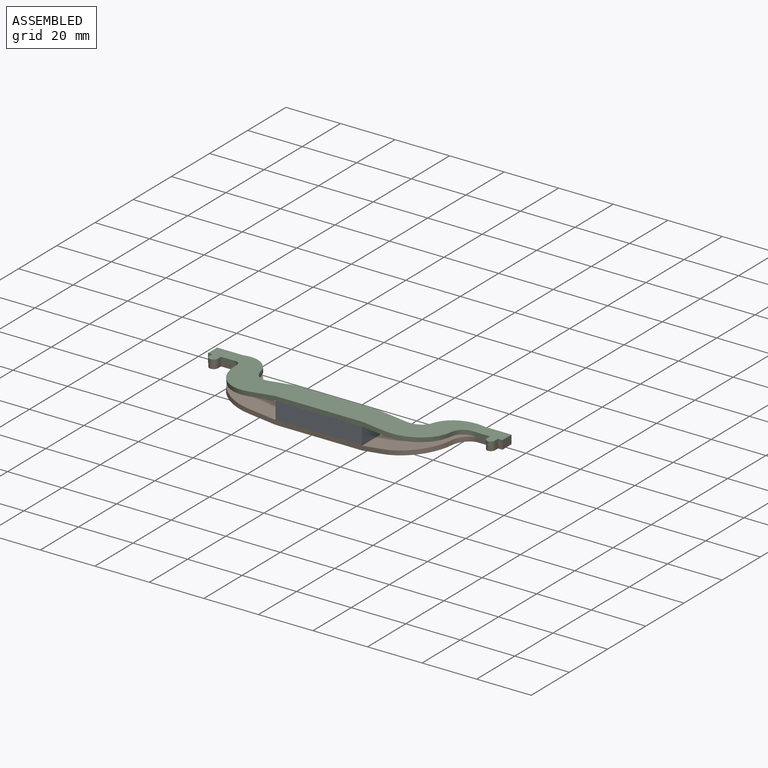
[diagram: assembled view]
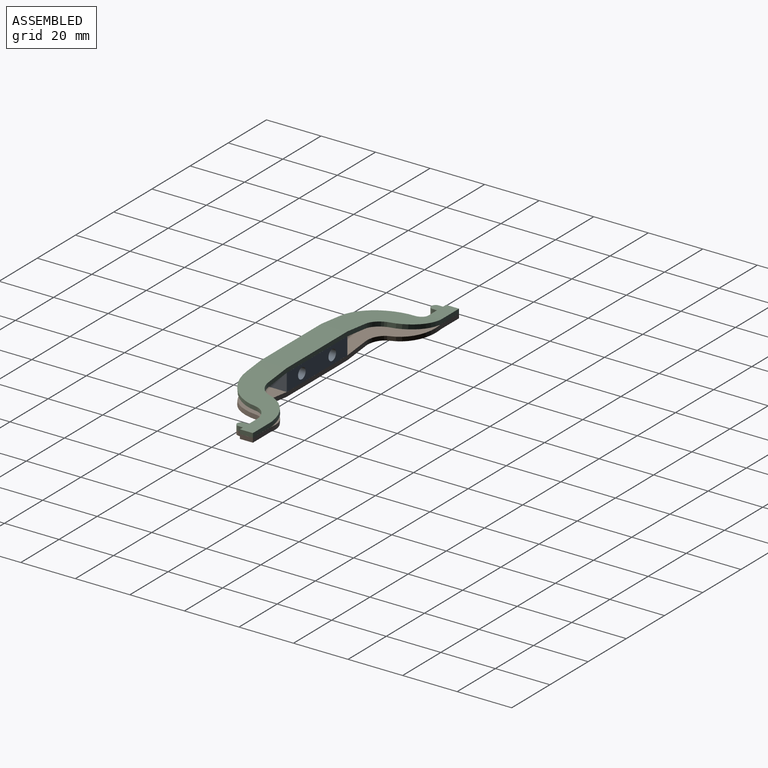
[diagram: assembled view, second angle]
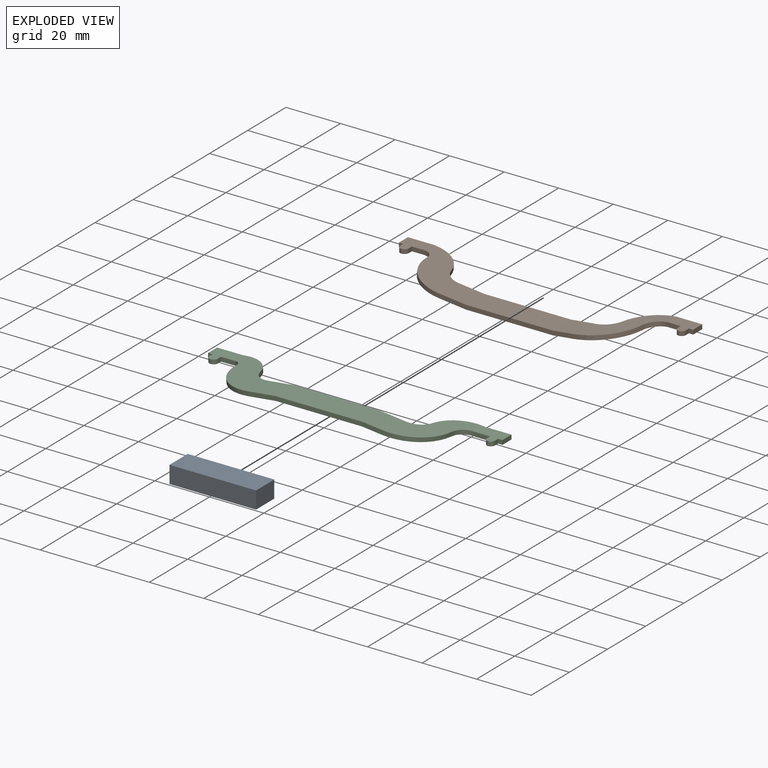
[diagram: exploded view]
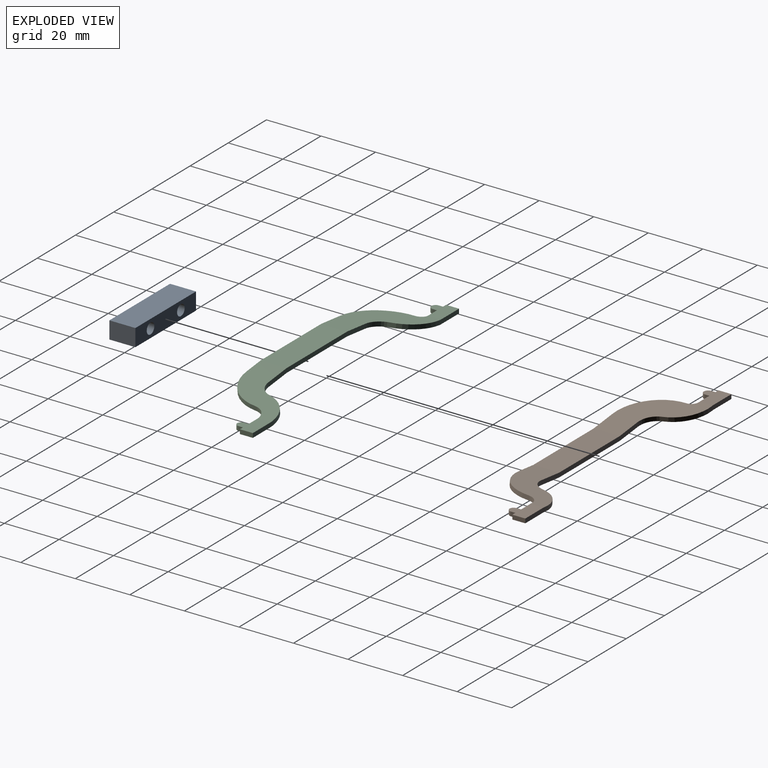
[diagram: exploded view, second angle]
ASSEMBLY  parts=3 mates=2
PART A: 10 faces, bbox 31.8x6.4x9.5 mm
  f0: plane 31.75x6.35mm, normal (0,0,1), area 177mm2, adj f1,f2,f3,f4,f6,f8
  f1: plane 31.75x9.53mm, normal (0,-1,0), area 302.4mm2, adj f0,f2,f4,f5
  f2: plane 9.53x6.35mm, normal (1,0,0), area 60.5mm2, adj f0,f1,f3,f5
  f3: plane 31.75x9.53mm, normal (0,1,0), area 302.4mm2, adj f0,f2,f4,f5
  f4: plane 9.53x6.35mm, normal (-1,0,0), area 60.5mm2, adj f0,f1,f3,f5
  f5: plane 31.75x6.35mm, normal (0,0,-1), area 201.6mm2, adj f1,f2,f3,f4
  f6: cylinder r=1.98mm len=6.35mm, axis (0,0,1), area 79mm2, adj f0,f7
  f7: plane 3.96x3.96mm, normal (0,0,1), area 12.3mm2, adj f6
  f8: cylinder r=1.98mm len=6.35mm, axis (0,0,1), area 79mm2, adj f0,f9
  f9: plane 3.96x3.96mm, normal (0,0,1), area 12.3mm2, adj f8
PART B: 59 faces, bbox 108x23.8x4.8 mm
  f0: plane 31.49x1.59mm, normal (0,-1,0), area 50mm2, adj f2,f3,f26,f55
  f1: plane 31.49x1.59mm, normal (0,1,0), area 50mm2, adj f2,f3,f27,f56
  f2: plane 31.49x9.53mm, normal (0,0,1), area 299.9mm2, adj f0,f1,f29,f58
  f3: plane 31.49x9.53mm, normal (0,0,-1), area 299.9mm2, adj f0,f1,f28,f57
  f4: plane 28.4x23.8mm, normal (-0.11,0,-0.99), area 328.8mm2, adj f6,f7,f8,f9,f10,f11,f12,f25
  f5: plane 28.4x23.8mm, normal (0.11,0,0.99), area 328.8mm2, adj f6,f7,f8,f9,f10,f11,f12,f24
  f6: plane 9.62x2.63mm, normal (0,1,0), area 15.1mm2, adj f4,f5,f7,f27
  f7: cylinder r=6.35mm len=6.29mm, axis (0.11,0,0.99), area 13.3mm2, adj f4,f5,f6,f8
  f8: cylinder r=12.7mm len=12.39mm, axis (0.11,0,0.99), area 26.6mm2, adj f4,f5,f7,f9
  f9: plane 1.65x0.8mm, normal (0,1,0), area 1mm2, adj f4,f5,f8,f23
  f10: cylinder r=2.77mm len=2.93mm, axis (0.11,0,0.99), area 7mm2, adj f4,f5,f11,f22
  f11: cylinder r=15.88mm len=16.22mm, axis (0.11,0,0.99), area 40.1mm2, adj f4,f5,f10,f12
  f12: plane 10.05x2.68mm, normal (0,-1,0), area 15.8mm2, adj f4,f5,f11,f26
  f13: plane 1.59x1.57mm, normal (-1,0,0), area 2.5mm2, adj f14,f19,f20,f21
  f14: cylinder r=1.59mm len=3.18mm, axis (0,0,1), area 7.9mm2, adj f13,f15,f20,f21
  f15: plane 1.59x1.57mm, normal (1,0,0), area 2.5mm2, adj f14,f16,f20,f21
  f16: plane 4.72x1.59mm, normal (0,-1,0), area 7.5mm2, adj f15,f20,f21,f22
  f17: plane 9.48x1.59mm, normal (0,1,0), area 15.1mm2, adj f18,f20,f21,f23
  f18: plane 4.75x1.59mm, normal (-1,0,0), area 7.5mm2, adj f17,f19,f20,f21
  f19: plane 1.59x1.59mm, normal (0,-1,0), area 2.5mm2, adj f13,f18,f20,f21
  f20: plane 9.48x7.91mm, normal (0,0,1), area 54mm2, adj f13,f14,f15,f16,f17,f18,f19,f24
  f21: plane 9.48x7.91mm, normal (0,0,-1), area 54mm2, adj f13,f14,f15,f16,f17,f18,f19,f25
  f22: plane 1.59x0.26mm, normal (0,-1,0), area 0.3mm2, adj f10,f16,f24,f25
  f23: plane 1.59x0.26mm, normal (0,1,0), area 0.3mm2, adj f9,f17,f24,f25
  f24: cylinder r=2.37mm len=4.75mm, axis (0,-1,0), area 1.2mm2, adj f5,f20,f22,f23
  f25: cylinder r=0.79mm len=4.75mm, axis (0,-1,0), area 0.4mm2, adj f4,f21,f22,f23
  f26: plane 1.59x0.26mm, normal (0,-1,0), area 0.3mm2, adj f0,f12,f28,f29
  f27: plane 1.59x0.26mm, normal (0,1,0), area 0.3mm2, adj f1,f6,f28,f29
  f28: cylinder r=2.37mm len=9.53mm, axis (0,-1,0), area 2.5mm2, adj f3,f4,f26,f27
  f29: cylinder r=0.79mm len=9.53mm, axis (0,-1,0), area 0.8mm2, adj f2,f5,f26,f27
  f30: plane 4.9x1.59mm, normal (0,-1,0), area 7.8mm2, adj f31,f38,f39,f51
  f31: plane 1.59x1.59mm, normal (-1,0,0), area 2.5mm2, adj f30,f32,f38,f39
  f32: extruded ~1.59x1.58mm, area 3.8mm2, adj f31,f33,f38,f39
  f33: cylinder r=1.59mm len=1.59mm, axis (0,0,1), area 3.8mm2, adj f32,f34,f38,f39
  f34: plane 1.59x1.59mm, normal (1,0,0), area 2.5mm2, adj f33,f35,f38,f39
  f35: plane 1.59x1.59mm, normal (0,-1,0), area 2.5mm2, adj f34,f36,f38,f39
  f36: plane 4.75x1.59mm, normal (1,0,0), area 7.5mm2, adj f35,f37,f38,f39
  f37: plane 9.48x1.59mm, normal (0,1,0), area 15.1mm2, adj f36,f38,f39,f52
  f38: plane 9.48x7.92mm, normal (0,0,1), area 53.5mm2, adj f30,f31,f32,f33,f34,f35,f36,f37
  f39: plane 9.48x7.92mm, normal (0,0,-1), area 53.5mm2, adj f30,f31,f32,f33,f34,f35,f36,f37
  f40: plane 1.58x0.18mm, normal (0.99,0,0.11), area 0.1mm2, adj f42,f49,f50,f51
  f41: cylinder r=5.55mm len=5.03mm, axis (-0.11,0,0.99), area 11.9mm2, adj f42,f48,f49,f50
  f42: plane 1.65x0.8mm, normal (0,-1,0), area 1mm2, adj f40,f41,f49,f50
  f43: plane 1.7x0.99mm, normal (0,1,0), area 1.3mm2, adj f44,f49,f50,f52
  f44: cylinder r=12.7mm len=12.39mm, axis (-0.11,0,0.99), area 26.3mm2, adj f43,f45,f49,f50
  f45: cylinder r=6.35mm len=6.29mm, axis (-0.11,0,0.99), area 13.3mm2, adj f44,f46,f49,f50
  f46: plane 9.62x2.63mm, normal (0,1,0), area 15.1mm2, adj f45,f49,f50,f56
  f47: plane 7.42x2.38mm, normal (0,-1,0), area 11.6mm2, adj f48,f49,f50,f55
  f48: cylinder r=15.88mm len=15.86mm, axis (-0.11,0,0.99), area 36.8mm2, adj f41,f47,f49,f50
  f49: plane 28.4x23.8mm, normal (-0.11,0,0.99), area 282.7mm2, adj f40,f41,f42,f43,f44,f45,f46,f47
  f50: plane 28.4x23.8mm, normal (0.11,0,-0.99), area 282.8mm2, adj f40,f41,f42,f43,f44,f45,f46,f47
  f51: plane 1.59x0.26mm, normal (0,-1,0), area 0.3mm2, adj f30,f40,f53,f54
  f52: plane 1.59x0.26mm, normal (0,1,0), area 0.3mm2, adj f37,f43,f53,f54
  f53: cylinder r=2.37mm len=4.75mm, axis (0,-1,0), area 1.2mm2, adj f38,f49,f51,f52
  f54: cylinder r=0.79mm len=4.75mm, axis (0,-1,0), area 0.4mm2, adj f39,f50,f51,f52
  f55: plane 1.59x0.26mm, normal (0,-1,0), area 0.3mm2, adj f0,f47,f57,f58
  f56: plane 1.59x0.26mm, normal (0,1,0), area 0.3mm2, adj f1,f46,f57,f58
  f57: cylinder r=2.37mm len=9.53mm, axis (0,-1,0), area 2.5mm2, adj f3,f50,f55,f56
  f58: cylinder r=0.79mm len=9.53mm, axis (0,-1,0), area 0.8mm2, adj f2,f49,f55,f56
PART C: 59 faces, bbox 108x23.8x4.8 mm
  f0: plane 31.49x1.59mm, normal (0,1,0), area 50mm2, adj f2,f3,f27,f56
  f1: plane 31.49x1.59mm, normal (0,-1,0), area 50mm2, adj f2,f3,f26,f55
  f2: plane 31.49x9.53mm, normal (0,0,-1), area 299.9mm2, adj f0,f1,f29,f58
  f3: plane 31.49x9.53mm, normal (0,0,1), area 299.9mm2, adj f0,f1,f28,f57
  f4: plane 28.4x23.8mm, normal (-0.11,0,0.99), area 328.8mm2, adj f6,f7,f8,f9,f10,f11,f12,f25
  f5: plane 28.4x23.8mm, normal (0.11,0,-0.99), area 328.8mm2, adj f6,f7,f8,f9,f10,f11,f12,f24
  f6: plane 10.05x2.68mm, normal (0,-1,0), area 15.8mm2, adj f4,f5,f7,f26
  f7: cylinder r=15.88mm len=16.22mm, axis (0.11,0,-0.99), area 40.1mm2, adj f4,f5,f6,f8
  f8: cylinder r=2.77mm len=2.93mm, axis (0.11,0,-0.99), area 7mm2, adj f4,f5,f7,f22
  f9: plane 1.65x0.8mm, normal (0,1,0), area 1mm2, adj f4,f5,f10,f23
  f10: cylinder r=12.7mm len=12.39mm, axis (0.11,0,-0.99), area 26.6mm2, adj f4,f5,f9,f11
  f11: cylinder r=6.35mm len=6.29mm, axis (0.11,0,-0.99), area 13.3mm2, adj f4,f5,f10,f12
  f12: plane 9.62x2.63mm, normal (0,1,0), area 15.1mm2, adj f4,f5,f11,f27
  f13: plane 4.72x1.59mm, normal (0,-1,0), area 7.5mm2, adj f14,f20,f21,f22
  f14: plane 1.59x1.57mm, normal (1,0,0), area 2.5mm2, adj f13,f15,f20,f21
  f15: cylinder r=1.59mm len=3.18mm, axis (0,0,-1), area 7.9mm2, adj f14,f16,f20,f21
  f16: plane 1.59x1.57mm, normal (-1,0,0), area 2.5mm2, adj f15,f17,f20,f21
  f17: plane 1.59x1.59mm, normal (0,-1,0), area 2.5mm2, adj f16,f18,f20,f21
  f18: plane 4.75x1.59mm, normal (-1,0,0), area 7.5mm2, adj f17,f19,f20,f21
  f19: plane 9.48x1.59mm, normal (0,1,0), area 15.1mm2, adj f18,f20,f21,f23
  f20: plane 9.48x7.91mm, normal (0,0,-1), area 54mm2, adj f13,f14,f15,f16,f17,f18,f19,f24
  f21: plane 9.48x7.91mm, normal (0,0,1), area 54mm2, adj f13,f14,f15,f16,f17,f18,f19,f25
  f22: plane 1.59x0.26mm, normal (0,-1,0), area 0.3mm2, adj f8,f13,f24,f25
  f23: plane 1.59x0.26mm, normal (0,1,0), area 0.3mm2, adj f9,f19,f24,f25
  f24: cylinder r=2.37mm len=4.75mm, axis (0,-1,0), area 1.2mm2, adj f5,f20,f22,f23
  f25: cylinder r=0.79mm len=4.75mm, axis (0,-1,0), area 0.4mm2, adj f4,f21,f22,f23
  f26: plane 1.59x0.26mm, normal (0,-1,0), area 0.3mm2, adj f1,f6,f28,f29
  f27: plane 1.59x0.26mm, normal (0,1,0), area 0.3mm2, adj f0,f12,f28,f29
  f28: cylinder r=2.37mm len=9.53mm, axis (0,-1,0), area 2.5mm2, adj f3,f4,f26,f27
  f29: cylinder r=0.79mm len=9.53mm, axis (0,-1,0), area 0.8mm2, adj f2,f5,f26,f27
  f30: plane 9.48x1.59mm, normal (0,1,0), area 15.1mm2, adj f31,f38,f39,f52
  f31: plane 4.75x1.59mm, normal (1,0,0), area 7.5mm2, adj f30,f32,f38,f39
  f32: plane 1.59x1.59mm, normal (0,-1,0), area 2.5mm2, adj f31,f33,f38,f39
  f33: plane 1.59x1.59mm, normal (1,0,0), area 2.5mm2, adj f32,f34,f38,f39
  f34: cylinder r=1.59mm len=1.59mm, axis (0,0,-1), area 3.8mm2, adj f33,f35,f38,f39
  f35: extruded ~1.59x1.58mm, area 3.8mm2, adj f34,f36,f38,f39
  f36: plane 1.59x1.59mm, normal (-1,0,0), area 2.5mm2, adj f35,f37,f38,f39
  f37: plane 4.9x1.59mm, normal (0,-1,0), area 7.8mm2, adj f36,f38,f39,f51
  f38: plane 9.5x7.94mm, normal (0,0,-1), area 53.5mm2, adj f30,f31,f32,f33,f34,f35,f36,f37
  f39: plane 9.48x7.92mm, normal (0,0,1), area 53.5mm2, adj f30,f31,f32,f33,f34,f35,f36,f37
  f40: plane 9.62x2.63mm, normal (0,1,0), area 15.1mm2, adj f41,f49,f50,f56
  f41: cylinder r=6.35mm len=6.29mm, axis (-0.11,0,-0.99), area 13.3mm2, adj f40,f42,f49,f50
  f42: cylinder r=12.7mm len=12.39mm, axis (-0.11,0,-0.99), area 26.3mm2, adj f41,f43,f49,f50
  f43: plane 1.7x0.99mm, normal (0,1,0), area 1.3mm2, adj f42,f49,f50,f52
  f44: plane 1.58x0.18mm, normal (0.99,0,-0.11), area 0.1mm2, adj f45,f49,f50,f51
  f45: plane 1.65x0.8mm, normal (0,-1,0), area 1mm2, adj f44,f46,f49,f50
  f46: cylinder r=5.55mm len=5.03mm, axis (-0.11,0,-0.99), area 11.9mm2, adj f45,f47,f49,f50
  f47: cylinder r=15.88mm len=15.86mm, axis (-0.11,0,-0.99), area 36.8mm2, adj f46,f48,f49,f50
  f48: plane 7.42x2.38mm, normal (0,-1,0), area 11.6mm2, adj f47,f49,f50,f55
  f49: plane 28.4x23.8mm, normal (-0.11,0,-0.99), area 282.7mm2, adj f40,f41,f42,f43,f44,f45,f46,f47
  f50: plane 28.4x23.8mm, normal (0.11,0,0.99), area 282.8mm2, adj f40,f41,f42,f43,f44,f45,f46,f47
  f51: plane 1.59x0.26mm, normal (0,-1,0), area 0.3mm2, adj f37,f44,f53,f54
  f52: plane 1.59x0.26mm, normal (0,1,0), area 0.3mm2, adj f30,f43,f53,f54
  f53: cylinder r=2.37mm len=4.75mm, axis (0,-1,0), area 1.2mm2, adj f38,f49,f51,f52
  f54: cylinder r=0.79mm len=4.75mm, axis (0,-1,0), area 0.4mm2, adj f39,f50,f51,f52
  f55: plane 1.59x0.26mm, normal (0,-1,0), area 0.3mm2, adj f1,f48,f57,f58
  f56: plane 1.59x0.26mm, normal (0,1,0), area 0.3mm2, adj f0,f40,f57,f58
  f57: cylinder r=2.37mm len=9.53mm, axis (0,-1,0), area 2.5mm2, adj f3,f50,f55,f56
  f58: cylinder r=0.79mm len=9.53mm, axis (0,-1,0), area 0.8mm2, adj f2,f49,f55,f56
PLACE A rot(axis=(-1,0,0),90deg) t=(-15.21,-0.04,16.64)mm
PLACE B t=(-15.16,14.24,11.87)mm
PLACE C t=(-15.16,14.24,11.88)mm
MATE fastened A.f0 <-> C.f40  axis (0,1,0) through (0.67,-0.04,19.82)mm
MATE fastened A.f0 <-> B.f56  axis (0,1,0) through (0.67,-0.04,13.47)mm
